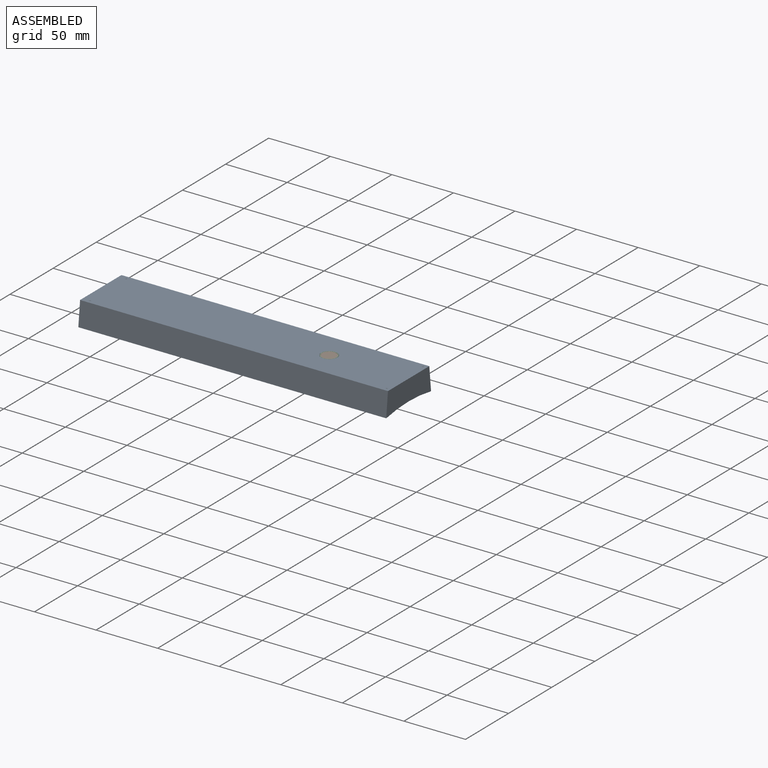
[diagram: assembled view]
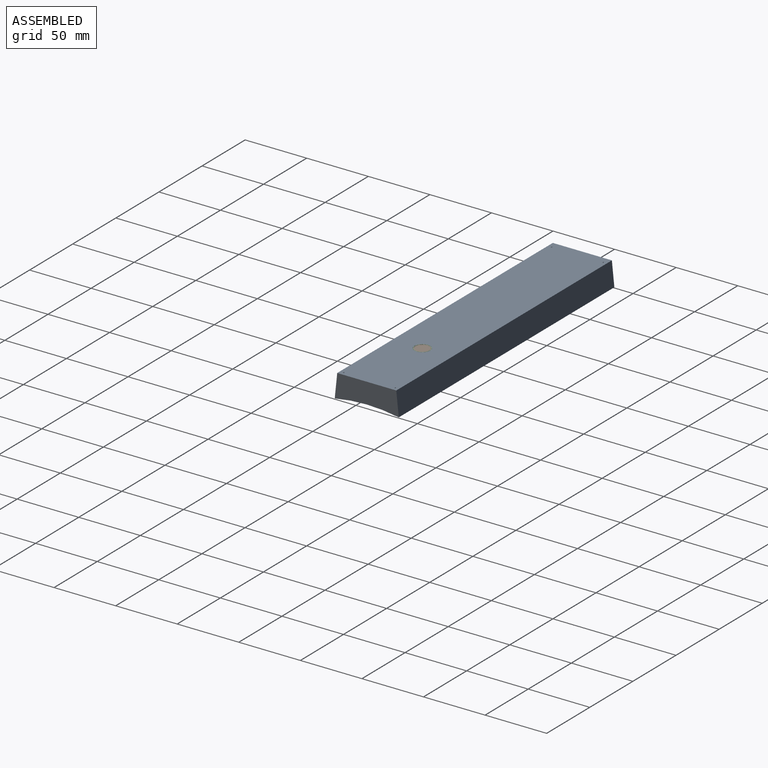
[diagram: assembled view, second angle]
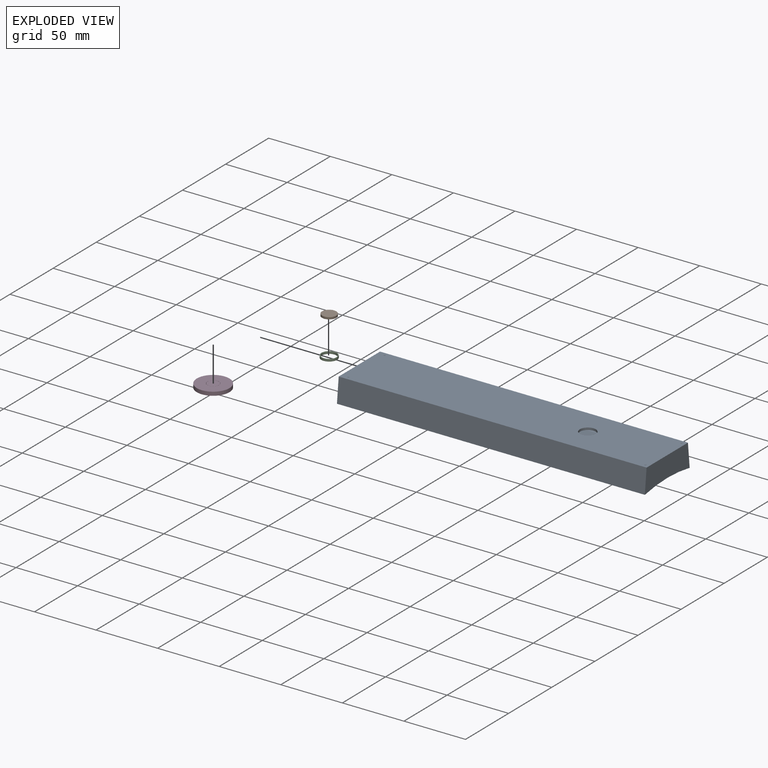
[diagram: exploded view]
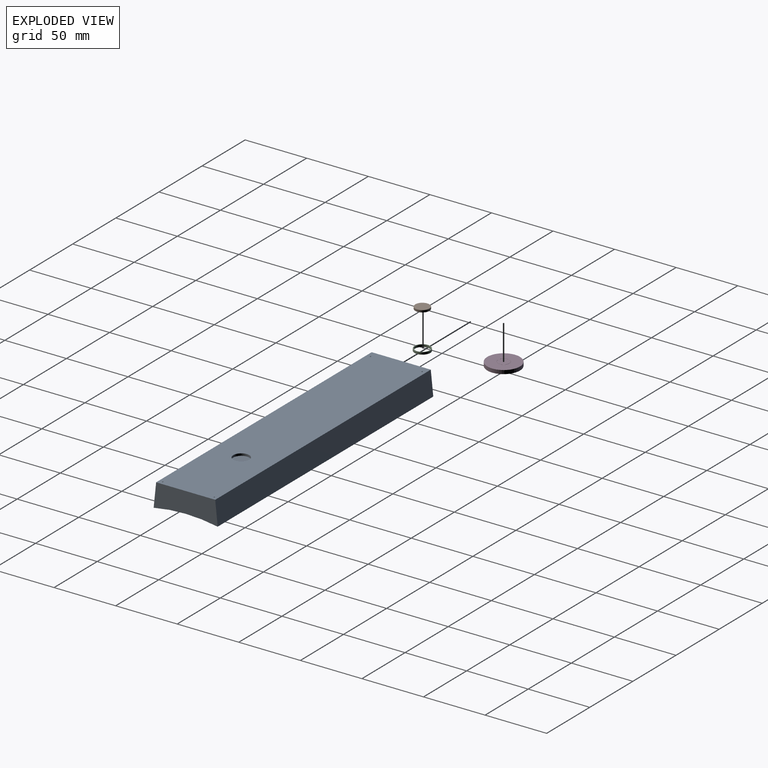
[diagram: exploded view, second angle]
ASSEMBLY  parts=4 mates=3
PART A: 28 faces, bbox 250x52x19.7 mm
  f0: cylinder r=136.45mm len=250mm, axis (-1,0,0), area 12171.7mm2, adj f1,f2,f4,f5,f16,f18,f19,f20
  f1: plane 52x19.2mm, normal (-1,0,0), area 872.8mm2, adj f0,f3,f4,f5
  f2: plane 52x19.2mm, normal (1,0,0), area 872.8mm2, adj f0,f3,f4,f5
  f3: plane 250x47.96mm, normal (0,0,1), area 11854.5mm2, adj f1,f2,f4,f5,f6,f12,f13,f14
  f4: plane 250x19.2mm, normal (0,0.99,0.1), area 4826.4mm2, adj f0,f1,f2,f3
  f5: plane 250x19.2mm, normal (0,-0.99,0.1), area 4826.4mm2, adj f0,f1,f2,f3
  f6: cylinder r=6.5mm len=13mm, axis (0,0,1), area 73.3mm2, adj f3,f7
  f7: plane 13x13mm, normal (0,0,1), area 132.7mm2, adj f6
  f8: plane 0.1x0.1mm, normal (0,0,1), area 0mm2, adj f12
  f9: plane 0.1x0.1mm, normal (0,0,1), area 0mm2, adj f15
  f10: plane 0.1x0.1mm, normal (0,0,1), area 0mm2, adj f14
  f11: plane 0.1x0.1mm, normal (0,0,1), area 0mm2, adj f13
  f12: torus R=0.05mm, axis (0,0,1), area 1.8mm2, adj f3,f8
  f13: torus R=0.05mm, axis (0,0,1), area 1.8mm2, adj f3,f11
  f14: torus R=0.05mm, axis (0,0,1), area 1.8mm2, adj f3,f10
  f15: torus R=0.05mm, axis (0,0,1), area 1.8mm2, adj f3,f9
  f16: cylinder r=13.25mm len=26.5mm, axis (0,0,-1), area 151.7mm2, adj f0,f17
  f17: plane 26.5x26.5mm, normal (0,0,-1), area 551.5mm2, adj f16
  f18: plane 21x1.55mm, normal (0,-1,0), area 32.5mm2, adj f0,f19,f21,f22
  f19: plane 8.93x2.07mm, normal (1,0,0), area 15.7mm2, adj f0,f18,f20,f22
  f20: plane 21x2.07mm, normal (0,1,0), area 43.5mm2, adj f0,f19,f21,f22
  f21: plane 8.93x2.07mm, normal (-1,0,0), area 15.7mm2, adj f0,f18,f20,f22
  f22: plane 21x8.93mm, normal (0,0,-1), area 187.6mm2, adj f18,f19,f20,f21
  f23: plane 21x2.07mm, normal (0,-1,0), area 43.5mm2, adj f0,f24,f26,f27
  f24: plane 8x2.07mm, normal (1,0,0), area 14.3mm2, adj f0,f23,f25,f27
  f25: plane 21x1.57mm, normal (0,1,0), area 33.1mm2, adj f0,f24,f26,f27
  f26: plane 8x2.07mm, normal (-1,0,0), area 14.3mm2, adj f0,f23,f25,f27
  f27: plane 21x8mm, normal (0,0,-1), area 168mm2, adj f23,f24,f25,f26
PART B: 4 faces, bbox 12.6x12.6x1.8 mm
  f0: cylinder r=5.8mm len=11.6mm, axis (0,0,-1), area 58.3mm2, adj f1,f3
  f1: plane 11.6x11.6mm, normal (0,0,-1), area 105.7mm2, adj f0
  f2: plane 11.2x11.2mm, normal (0,0,1), area 98.5mm2, adj f3
  f3: torus R=5.6mm, axis (0,0,1), area 11.3mm2, adj f0,f2
PART C: 4 faces, bbox 12.8x12.8x1.8 mm
  f0: cylinder r=5.8mm len=11.6mm, axis (0,0,-1), area 65.6mm2, adj f2,f3
  f1: cylinder r=6.4mm len=12.8mm, axis (0,0,-1), area 72.4mm2, adj f2,f3
  f2: plane 12.8x12.8mm, normal (0,0,-1), area 23mm2, adj f0,f1
  f3: plane 12.8x12.8mm, normal (0,0,1), area 23mm2, adj f0,f1
PART D: 40 faces, bbox 26.5x26.5x3.4 mm
  f0: cone r=4.5mm half-angle=3deg, axis (0,0,1), area 68.3mm2, adj f1,f3
  f1: plane 9.31x9.31mm, normal (0,0,1), area 68.1mm2, adj f0
  f2: plane 6.88x6.88mm, normal (0,0,-1), area 37.2mm2, adj f3
  f3: torus R=3.44mm, axis (0,0,1), area 43.1mm2, adj f0,f2
  f4: plane 2x1.95mm, normal (0,0,-1), area 1.8mm2, adj f5,f6,f7,f8,f9,f10,f11
  f5: plane 1.25x1mm, normal (0.62,-0.78,0), area 0.5mm2, adj f4,f6,f11,f36
  f6: plane 1.25x1mm, normal (0.62,0.78,0), area 0.5mm2, adj f4,f5,f7,f36
  f7: plane 0.6x0.3mm, normal (-1,0,0), area 0.2mm2, adj f4,f6,f8,f36
  f8: plane 0.7x0.3mm, normal (0,1,0), area 0.2mm2, adj f4,f7,f9,f36
  f9: plane 0.8x0.3mm, normal (-1,0,0), area 0.2mm2, adj f4,f8,f10,f36
  f10: plane 0.7x0.3mm, normal (0,-1,0), area 0.2mm2, adj f4,f9,f11,f36
  f11: plane 0.6x0.3mm, normal (-1,0,0), area 0.2mm2, adj f4,f5,f10,f36
  f12: plane 2x1.95mm, normal (0,0,-1), area 1.8mm2, adj f13,f14,f15,f16,f17,f18,f19
  f13: plane 1.25x1mm, normal (0.78,0.62,0), area 0.5mm2, adj f12,f14,f19,f36
  f14: plane 1.25x1mm, normal (-0.78,0.62,0), area 0.5mm2, adj f12,f13,f15,f36
  f15: plane 0.6x0.3mm, normal (0,-1,0), area 0.2mm2, adj f12,f14,f16,f36
  f16: plane 0.7x0.3mm, normal (-1,0,0), area 0.2mm2, adj f12,f15,f17,f36
  f17: plane 0.8x0.3mm, normal (0,-1,0), area 0.2mm2, adj f12,f16,f18,f36
  f18: plane 0.7x0.3mm, normal (1,0,0), area 0.2mm2, adj f12,f17,f19,f36
  f19: plane 0.6x0.3mm, normal (0,-1,0), area 0.2mm2, adj f12,f13,f18,f36
  f20: plane 2x1.95mm, normal (0,0,-1), area 1.8mm2, adj f21,f22,f23,f24,f25,f26,f27
  f21: plane 1.25x1mm, normal (-0.62,0.78,0), area 0.5mm2, adj f20,f22,f27,f36
  f22: plane 1.25x1mm, normal (-0.62,-0.78,0), area 0.5mm2, adj f20,f21,f23,f36
  f23: plane 0.6x0.3mm, normal (1,0,0), area 0.2mm2, adj f20,f22,f24,f36
  f24: plane 0.7x0.3mm, normal (0,-1,0), area 0.2mm2, adj f20,f23,f25,f36
  f25: plane 0.8x0.3mm, normal (1,0,0), area 0.2mm2, adj f20,f24,f26,f36
  f26: plane 0.7x0.3mm, normal (0,1,0), area 0.2mm2, adj f20,f25,f27,f36
  f27: plane 0.6x0.3mm, normal (1,0,0), area 0.2mm2, adj f20,f21,f26,f36
  f28: plane 2x1.95mm, normal (0,0,-1), area 1.8mm2, adj f29,f30,f31,f32,f33,f34,f35
  f29: plane 1.25x1mm, normal (0.78,-0.62,0), area 0.5mm2, adj f28,f30,f35,f36
  f30: plane 0.6x0.3mm, normal (0,1,0), area 0.2mm2, adj f28,f29,f31,f36
  f31: plane 0.7x0.3mm, normal (1,0,0), area 0.2mm2, adj f28,f30,f32,f36
  f32: plane 0.8x0.3mm, normal (0,1,0), area 0.2mm2, adj f28,f31,f33,f36
  f33: plane 0.7x0.3mm, normal (-1,0,0), area 0.2mm2, adj f28,f32,f34,f36
  f34: plane 0.6x0.3mm, normal (0,1,0), area 0.2mm2, adj f28,f33,f35,f36
  f35: plane 1.25x1mm, normal (-0.78,-0.62,0), area 0.5mm2, adj f28,f29,f34,f36
  f36: plane 26.5x26.5mm, normal (0,0,-1), area 473.4mm2, adj f5,f6,f7,f8,f9,f10,f11,f13
  f37: cylinder r=13.25mm len=26.5mm, axis (0,0,-1), area 249.8mm2, adj f36,f38
  f38: plane 26.5x26.5mm, normal (0,0,1), area 480.7mm2, adj f37,f39
  f39: cylinder r=4.75mm len=9.5mm, axis (0,0,-1), area 89.5mm2, adj f36,f38
PLACE A t=(35.2,-26,1)mm
PLACE B t=(94.25,0,18.4)mm
PLACE C t=(94.25,0,18.4)mm
PLACE D t=(0,0,2)mm
MATE fastened A.f6 <-> B.f0  axis (0,0,1) through (94.25,0,18.4)mm
MATE fastened A.f6 <-> C.f0  axis (0,0,1) through (94.25,0,18.4)mm
MATE fastened A.f16 <-> D.f0  axis (0,0,-1) through (0,0,5)mm
